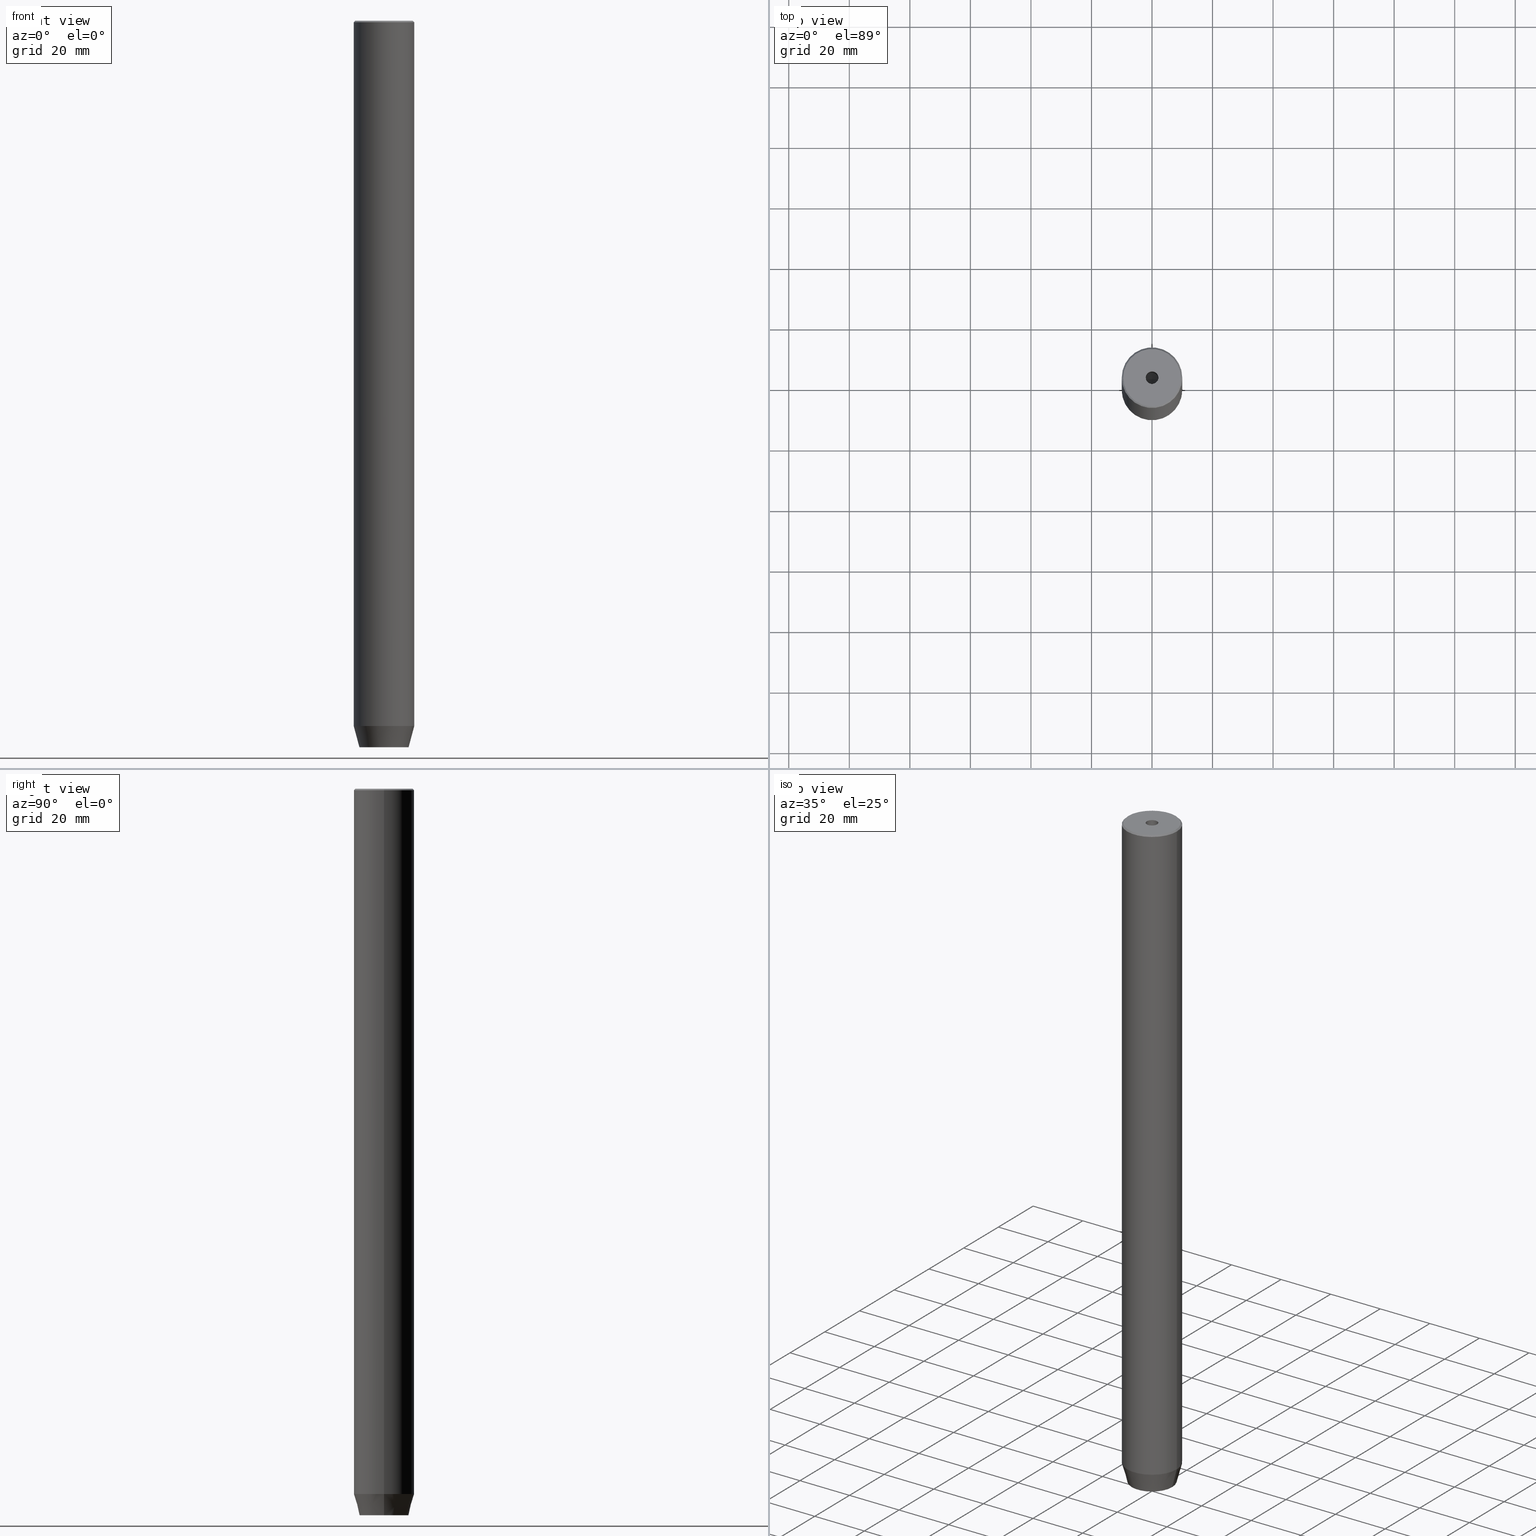
[diagram: canonical four-view strip — front | top / right | iso, engineering-drawing reading convention]
A machine part, canonical four-view strip (front | top / right | iso — engineering-drawing reading convention). The complete STEP part file that produces these views, byte-faithful:
ISO-10303-21;
HEADER;
FILE_DESCRIPTION (( 'STEP AP203' ),
    '1' );
FILE_NAME ('13ba.STEP',
    '2024-01-02T19:03:05',
    ( '' ),
    ( '' ),
    'SwSTEP 2.0',
    'SolidWorks 2019',
    '' );
FILE_SCHEMA (( 'CONFIG_CONTROL_DESIGN' ));
ENDSEC;

DATA;
#1 = EDGE_LOOP ( 'NONE', ( #378, #372, #456, #17 ) ) ;
#2 = CARTESIAN_POINT ( 'NONE',  ( -10.00000000000000000, 1.224646799147353256E-15, -232.9999999999999716 ) ) ;
#3 = CC_DESIGN_PERSON_AND_ORGANIZATION_ASSIGNMENT ( #78, #136, ( #303 ) ) ;
#4 = EDGE_LOOP ( 'NONE', ( #433, #330, #463 ) ) ;
#5 = DIRECTION ( 'NONE',  ( -0.000000000000000000, -0.000000000000000000, 1.000000000000000000 ) ) ;
#6 = DIRECTION ( 'NONE',  ( 0.5000000000000001110, 0.8660254037844385966, -0.000000000000000000 ) ) ;
#7 = CARTESIAN_POINT ( 'NONE',  ( 4.336808689942017736E-16, -4.618802153517006737, -237.1999999999999886 ) ) ;
#8 = EDGE_LOOP ( 'NONE', ( #275, #309 ) ) ;
#9 = LINE ( 'NONE', #373, #529 ) ;
#10 = LOCAL_TIME ( 20, 3, 5.000000000000000000, #58 ) ;
#11 = CARTESIAN_POINT ( 'NONE',  ( 2.000000000000000888, -3.464101615137754386, -237.1999999999999886 ) ) ;
#12 = VERTEX_POINT ( 'NONE', #393 ) ;
#13 = EDGE_CURVE ( 'NONE', #152, #273, #534, .T. ) ;
#14 = PERSON_AND_ORGANIZATION ( #92, #29 ) ;
#15 = CARTESIAN_POINT ( 'NONE',  ( 0.000000000000000000, 0.000000000000000000, -25.00000000000000000 ) ) ;
#16 = CYLINDRICAL_SURFACE ( 'NONE', #158, 10.00000000000000000 ) ;
#17 = ORIENTED_EDGE ( 'NONE', *, *, #101, .T. ) ;
#18 = CARTESIAN_POINT ( 'NONE',  ( -2.000000000000000888, -3.464101615137754386, -237.1999999999999886 ) ) ;
#19 = ORIENTED_EDGE ( 'NONE', *, *, #35, .F. ) ;
#20 = LINE ( 'NONE', #379, #511 ) ;
#21 = CALENDAR_DATE ( 2024, 2, 1 ) ;
#22 = VECTOR ( 'NONE', #238, 1000.000000000000000 ) ;
#23 = CARTESIAN_POINT ( 'NONE',  ( -2.000000000000000000, 3.464101615137754830, -237.1999999999999886 ) ) ;
#24 = EDGE_CURVE ( 'NONE', #410, #229, #467, .T. ) ;
#25 = DIRECTION ( 'NONE',  ( 0.5000000000000003331, -0.8660254037844385966, 0.000000000000000000 ) ) ;
#26 = ORIENTED_EDGE ( 'NONE', *, *, #317, .F. ) ;
#27 = CIRCLE ( 'NONE', #108, 10.00000000000000000 ) ;
#28 = CONICAL_SURFACE ( 'NONE', #360, 2.099999999999995648, 1.029744258676651647 ) ;
#29 = ORGANIZATION ( 'NEUR�EN�', 'NEUR�EN�', '' ) ;
#30 = DIRECTION ( 'NONE',  ( -1.000000000000000000, 0.000000000000000000, 0.000000000000000000 ) ) ;
#31 = ADVANCED_FACE ( 'NONE', ( #576 ), #405, .T. ) ;
#32 = DIRECTION ( 'NONE',  ( -1.000000000000000000, 0.000000000000000000, 0.000000000000000000 ) ) ;
#33 = CALENDAR_DATE ( 2024, 2, 1 ) ;
#34 = VERTEX_POINT ( 'NONE', #77 ) ;
#35 = EDGE_CURVE ( 'NONE', #545, #152, #351, .T. ) ;
#36 = CARTESIAN_POINT ( 'NONE',  ( 2.000000000000000444, 3.464101615137754386, -240.0000000000000000 ) ) ;
#37 = AXIS2_PLACEMENT_3D ( 'NONE', #271, #450, #333 ) ;
#38 = ORIENTED_EDGE ( 'NONE', *, *, #209, .F. ) ;
#39 = ORIENTED_EDGE ( 'NONE', *, *, #168, .F. ) ;
#40 = CARTESIAN_POINT ( 'NONE',  ( 9.499999999999980460, 1.163414459189983119E-15, 0.000000000000000000 ) ) ;
#41 = DIRECTION ( 'NONE',  ( 1.000000000000000000, 0.000000000000000000, 0.000000000000000000 ) ) ;
#42 = FACE_OUTER_BOUND ( 'NONE', #503, .T. ) ;
#43 = ORIENTED_EDGE ( 'NONE', *, *, #342, .T. ) ;
#44 = VECTOR ( 'NONE', #457, 1000.000000000000114 ) ;
#45 = CC_DESIGN_APPROVAL ( #161, ( #264 ) ) ;
#46 = CC_DESIGN_PERSON_AND_ORGANIZATION_ASSIGNMENT ( #293, #202, ( #264 ) ) ;
#47 = FACE_OUTER_BOUND ( 'NONE', #320, .T. ) ;
#48 = VERTEX_POINT ( 'NONE', #220 ) ;
#49 = DIRECTION ( 'NONE',  ( 1.000000000000000000, 0.000000000000000000, 0.000000000000000000 ) ) ;
#50 = ORIENTED_EDGE ( 'NONE', *, *, #510, .F. ) ;
#51 = CARTESIAN_POINT ( 'NONE',  ( 4.000000000000000000, 0.000000000000000000, -240.0000000000000000 ) ) ;
#52 = ADVANCED_FACE ( 'NONE', ( #173 ), #537, .T. ) ;
#53 = FACE_OUTER_BOUND ( 'NONE', #452, .T. ) ;
#54 = ADVANCED_FACE ( 'NONE', ( #441 ), #121, .T. ) ;
#55 = DIRECTION ( 'NONE',  ( -0.000000000000000000, -0.000000000000000000, 1.000000000000000000 ) ) ;
#56 = VECTOR ( 'NONE', #364, 1000.000000000000114 ) ;
#57 = DIRECTION ( 'NONE',  ( -0.000000000000000000, -0.000000000000000000, 1.000000000000000000 ) ) ;
#58 = COORDINATED_UNIVERSAL_TIME_OFFSET ( 1, 0, .AHEAD. ) ;
#59 = CARTESIAN_POINT ( 'NONE',  ( 2.099999999999998757, 0.000000000000000000, -1.990051048614449116E-16 ) ) ;
#60 = PERSON_AND_ORGANIZATION ( #92, #29 ) ;
#61 = VERTEX_POINT ( 'NONE', #266 ) ;
#62 = DIRECTION ( 'NONE',  ( 1.000000000000000000, 0.000000000000000000, 0.000000000000000000 ) ) ;
#63 = PERSON_AND_ORGANIZATION_ROLE ( 'design_owner' ) ;
#64 = PLANE ( 'NONE',  #493 ) ;
#65 = ORIENTED_EDGE ( 'NONE', *, *, #70, .F. ) ;
#66 = APPROVAL ( #356, 'NEUR�EN�' ) ;
#67 = VECTOR ( 'NONE', #294, 999.9999999999998863 ) ;
#68 = VERTEX_POINT ( 'NONE', #397 ) ;
#69 = DIRECTION ( 'NONE',  ( 0.000000000000000000, 0.000000000000000000, -1.000000000000000000 ) ) ;
#70 = EDGE_CURVE ( 'NONE', #61, #155, #265, .T. ) ;
#71 = DIRECTION ( 'NONE',  ( -0.000000000000000000, -0.000000000000000000, 1.000000000000000000 ) ) ;
#72 = AXIS2_PLACEMENT_3D ( 'NONE', #462, #415, #357 ) ;
#73 = VECTOR ( 'NONE', #175, 1000.000000000000000 ) ;
#74 = PRODUCT_DEFINITION_SHAPE ( 'NONE', 'NONE',  #264 ) ;
#75 = DIRECTION ( 'NONE',  ( -0.000000000000000000, -0.000000000000000000, 1.000000000000000000 ) ) ;
#76 = CALENDAR_DATE ( 2024, 2, 1 ) ;
#77 = CARTESIAN_POINT ( 'NONE',  ( -4.000000000000000000, 2.309401076758503368, -240.0000000000000000 ) ) ;
#78 = PERSON_AND_ORGANIZATION ( #92, #29 ) ;
#79 = EDGE_CURVE ( 'NONE', #85, #438, #130, .T. ) ;
#80 = ORIENTED_EDGE ( 'NONE', *, *, #501, .T. ) ;
#81 = AXIS2_PLACEMENT_3D ( 'NONE', #179, #539, #30 ) ;
#82 = AXIS2_PLACEMENT_3D ( 'NONE', #176, #71, #581 ) ;
#83 = DIRECTION ( 'NONE',  ( 1.000000000000000000, 0.000000000000000000, 0.000000000000000000 ) ) ;
#84 = AXIS2_PLACEMENT_3D ( 'NONE', #472, #477, #250 ) ;
#85 = VERTEX_POINT ( 'NONE', #447 ) ;
#86 = ORIENTED_EDGE ( 'NONE', *, *, #127, .T. ) ;
#87 = LINE ( 'NONE', #51, #236 ) ;
#88 = CARTESIAN_POINT ( 'NONE',  ( 0.000000000000000000, 0.000000000000000000, -237.1999999999999886 ) ) ;
#89 = EDGE_CURVE ( 'NONE', #432, #389, #327, .T. ) ;
#90 = ORIENTED_EDGE ( 'NONE', *, *, #127, .F. ) ;
#91 = LINE ( 'NONE', #193, #546 ) ;
#92 = PERSON ( 'NEUR�EN�', 'NEUR�EN�', 'NEUR�EN�', ('NEUR�EN�'), ('NEUR�EN�'), ('NEUR�EN�') ) ;
#93 = CARTESIAN_POINT ( 'NONE',  ( 4.000000000000000000, 2.309401076758503368, -237.1999999999999886 ) ) ;
#94 = CLOSED_SHELL ( 'NONE', ( #392, #483, #31, #224, #52, #374, #436, #230, #528, #54, #543, #406, #582, #538, #150, #243, #141, #363, #166 ) ) ;
#95 = ORIENTED_EDGE ( 'NONE', *, *, #203, .T. ) ;
#96 = VECTOR ( 'NONE', #409, 1000.000000000000114 ) ;
#97 = CARTESIAN_POINT ( 'NONE',  ( 9.499999999999980460, 1.194030629168668286E-15, 0.000000000000000000 ) ) ;
#98 = DIRECTION ( 'NONE',  ( -0.5000000000000003331, -0.8660254037844385966, 0.000000000000000000 ) ) ;
#99 = VERTEX_POINT ( 'NONE', #216 ) ;
#100 = CC_DESIGN_DATE_AND_TIME_ASSIGNMENT ( #174, #128, ( #264 ) ) ;
#101 = EDGE_CURVE ( 'NONE', #12, #196, #27, .T. ) ;
#102 = DIRECTION ( 'NONE',  ( -0.000000000000000000, -0.000000000000000000, 1.000000000000000000 ) ) ;
#103 = DIRECTION ( 'NONE',  ( -0.000000000000000000, -0.000000000000000000, 1.000000000000000000 ) ) ;
#104 = ORIENTED_EDGE ( 'NONE', *, *, #396, .T. ) ;
#105 = CARTESIAN_POINT ( 'NONE',  ( 0.000000000000000000, 0.000000000000000000, 0.000000000000000000 ) ) ;
#106 = LINE ( 'NONE', #344, #468 ) ;
#107 = ORIENTED_EDGE ( 'NONE', *, *, #565, .T. ) ;
#108 = AXIS2_PLACEMENT_3D ( 'NONE', #485, #69, #312 ) ;
#109 = AXIS2_PLACEMENT_3D ( 'NONE', #244, #335, #486 ) ;
#110 = LINE ( 'NONE', #23, #67 ) ;
#111 = DIRECTION ( 'NONE',  ( -0.000000000000000000, -0.000000000000000000, 1.000000000000000000 ) ) ;
#112 = DIRECTION ( 'NONE',  ( -0.000000000000000000, -0.000000000000000000, 1.000000000000000000 ) ) ;
#113 = DIRECTION ( 'NONE',  ( 1.000000000000000000, 0.000000000000000000, 0.000000000000000000 ) ) ;
#114 = APPROVAL_STATUS ( 'not_yet_approved' ) ;
#115 = ORIENTED_EDGE ( 'NONE', *, *, #414, .F. ) ;
#116 = DIRECTION ( 'NONE',  ( -0.000000000000000000, -0.000000000000000000, 1.000000000000000000 ) ) ;
#117 = ORIENTED_EDGE ( 'NONE', *, *, #101, .F. ) ;
#118 = DIRECTION ( 'NONE',  ( 1.000000000000000000, 0.000000000000000000, 0.000000000000000000 ) ) ;
#119 = DIRECTION ( 'NONE',  ( -0.000000000000000000, -0.000000000000000000, 1.000000000000000000 ) ) ;
#120 = CYLINDRICAL_SURFACE ( 'NONE', #431, 2.099999999999996980 ) ;
#121 = CONICAL_SURFACE ( 'NONE', #81, 9.499999999999980460, 0.7853981633974412846 ) ;
#122 = AXIS2_PLACEMENT_3D ( 'NONE', #520, #207, #198 ) ;
#123 = DIRECTION ( 'NONE',  ( 0.8660254037844384856, 0.5000000000000002220, 0.000000000000000000 ) ) ;
#124 = DIRECTION ( 'NONE',  ( 1.000000000000000000, 0.000000000000000000, 0.000000000000000000 ) ) ;
#125 = CARTESIAN_POINT ( 'NONE',  ( 0.000000000000000000, 0.000000000000000000, 0.000000000000000000 ) ) ;
#126 = DATE_AND_TIME ( #76, #482 ) ;
#127 = EDGE_CURVE ( 'NONE', #334, #61, #262, .T. ) ;
#128 = DATE_TIME_ROLE ( 'creation_date' ) ;
#129 = CARTESIAN_POINT ( 'NONE',  ( -9.499999999999980460, 0.000000000000000000, 0.000000000000000000 ) ) ;
#130 = LINE ( 'NONE', #36, #212 ) ;
#131 = PERSON_AND_ORGANIZATION ( #92, #29 ) ;
#132 = CARTESIAN_POINT ( 'NONE',  ( 10.00000000000000000, 0.000000000000000000, 0.000000000000000000 ) ) ;
#133 = CIRCLE ( 'NONE', #382, 10.00000000000000000 ) ;
#134 = CARTESIAN_POINT ( 'NONE',  ( 2.000000000000000444, 3.464101615137754386, -237.1999999999999886 ) ) ;
#135 = EDGE_CURVE ( 'NONE', #273, #460, #403, .T. ) ;
#136 = PERSON_AND_ORGANIZATION_ROLE ( 'design_supplier' ) ;
#137 = CARTESIAN_POINT ( 'NONE',  ( 4.000000000000000000, 0.000000000000000000, -237.1999999999999886 ) ) ;
#138 = CARTESIAN_POINT ( 'NONE',  ( 0.000000000000000000, 0.000000000000000000, 0.000000000000000000 ) ) ;
#139 = DIRECTION ( 'NONE',  ( 0.000000000000000000, 0.000000000000000000, -1.000000000000000000 ) ) ;
#140 = DIRECTION ( 'NONE',  ( 0.8571673007021108903, 0.000000000000000000, 0.5150380749100565980 ) ) ;
#141 = ADVANCED_FACE ( 'NONE', ( #47 ), #542, .T. ) ;
#142 = LINE ( 'NONE', #365, #178 ) ;
#143 = EDGE_LOOP ( 'NONE', ( #338, #426, #65, #90, #323, #301 ) ) ;
#144 = ORIENTED_EDGE ( 'NONE', *, *, #332, .T. ) ;
#145 = LINE ( 'NONE', #464, #22 ) ;
#146 = CYLINDRICAL_SURFACE ( 'NONE', #72, 2.099999999999996980 ) ;
#147 =( NAMED_UNIT ( * ) PLANE_ANGLE_UNIT ( ) SI_UNIT ( $, .RADIAN. ) );
#148 = ORIENTED_EDGE ( 'NONE', *, *, #580, .F. ) ;
#149 = CIRCLE ( 'NONE', #553, 9.499999999999980460 ) ;
#150 = ADVANCED_FACE ( 'NONE', ( #42 ), #400, .F. ) ;
#151 = LINE ( 'NONE', #451, #369 ) ;
#152 = VERTEX_POINT ( 'NONE', #93 ) ;
#153 = CARTESIAN_POINT ( 'NONE',  ( 0.000000000000000000, 4.618802153517006737, -237.1999999999999886 ) ) ;
#154 = DIRECTION ( 'NONE',  ( 1.000000000000000000, 0.000000000000000000, 0.000000000000000000 ) ) ;
#155 = VERTEX_POINT ( 'NONE', #278 ) ;
#156 = DIRECTION ( 'NONE',  ( -0.000000000000000000, -0.000000000000000000, 1.000000000000000000 ) ) ;
#157 = ORIENTED_EDGE ( 'NONE', *, *, #501, .F. ) ;
#158 = AXIS2_PLACEMENT_3D ( 'NONE', #201, #119, #296 ) ;
#159 = ORIENTED_EDGE ( 'NONE', *, *, #79, .T. ) ;
#160 = SECURITY_CLASSIFICATION ( '', '', #349 ) ;
#161 = APPROVAL ( #240, 'NEUR�EN�' ) ;
#162 = ORIENTED_EDGE ( 'NONE', *, *, #13, .T. ) ;
#163 = DATE_AND_TIME ( #21, #10 ) ;
#164 = ORIENTED_EDGE ( 'NONE', *, *, #332, .F. ) ;
#165 = CARTESIAN_POINT ( 'NONE',  ( -8.124355652982137244, 1.109796706851640556E-15, -240.0000000000000000 ) ) ;
#166 = ADVANCED_FACE ( 'NONE', ( #190 ), #146, .F. ) ;
#167 = APPROVAL_ROLE ( '' ) ;
#168 = EDGE_CURVE ( 'NONE', #549, #348, #149, .T. ) ;
#169 = VECTOR ( 'NONE', #57, 1000.000000000000000 ) ;
#170 = AXIS2_PLACEMENT_3D ( 'NONE', #469, #112, #154 ) ;
#171 = PLANE ( 'NONE',  #361 ) ;
#172 = DIRECTION ( 'NONE',  ( 1.000000000000000000, 0.000000000000000000, 0.000000000000000000 ) ) ;
#173 = FACE_OUTER_BOUND ( 'NONE', #223, .T. ) ;
#174 = DATE_AND_TIME ( #434, #494 ) ;
#175 = DIRECTION ( 'NONE',  ( -0.000000000000000000, -0.000000000000000000, -1.000000000000000000 ) ) ;
#176 = CARTESIAN_POINT ( 'NONE',  ( 0.000000000000000000, 0.000000000000000000, -1.990051048614449116E-16 ) ) ;
#177 = DATE_TIME_ROLE ( 'classification_date' ) ;
#178 = VECTOR ( 'NONE', #505, 999.9999999999998863 ) ;
#179 = CARTESIAN_POINT ( 'NONE',  ( 0.000000000000000000, 0.000000000000000000, 0.000000000000000000 ) ) ;
#180 = DIRECTION ( 'NONE',  ( 0.8660254037844384856, -0.5000000000000002220, 0.000000000000000000 ) ) ;
#181 = DIRECTION ( 'NONE',  ( -0.000000000000000000, 0.000000000000000000, -1.000000000000000000 ) ) ;
#182 = EDGE_LOOP ( 'NONE', ( #381, #550, #272, #283 ) ) ;
#183 = EDGE_CURVE ( 'NONE', #348, #549, #479, .T. ) ;
#184 = CONICAL_SURFACE ( 'NONE', #122, 2.099999999999995648, 1.029744258676651647 ) ;
#185 = PLANE ( 'NONE',  #442 ) ;
#186 = APPROVAL_PERSON_ORGANIZATION ( #131, #66, #167 ) ;
#187 = ORIENTED_EDGE ( 'NONE', *, *, #209, .T. ) ;
#188 = DIRECTION ( 'NONE',  ( -0.000000000000000000, -0.000000000000000000, -1.000000000000000000 ) ) ;
#189 = EDGE_CURVE ( 'NONE', #460, #61, #20, .T. ) ;
#190 = FACE_OUTER_BOUND ( 'NONE', #225, .T. ) ;
#191 = CARTESIAN_POINT ( 'NONE',  ( 8.124355652982137244, 0.000000000000000000, -240.0000000000000000 ) ) ;
#192 = ORIENTED_EDGE ( 'NONE', *, *, #299, .T. ) ;
#193 = CARTESIAN_POINT ( 'NONE',  ( -4.000000000000000000, 2.309401076758503368, -237.1999999999999886 ) ) ;
#194 = DIRECTION ( 'NONE',  ( -0.8660254037844385966, 0.5000000000000001110, 0.000000000000000000 ) ) ;
#195 = VECTOR ( 'NONE', #573, 1000.000000000000000 ) ;
#196 = VERTEX_POINT ( 'NONE', #563 ) ;
#197 = CIRCLE ( 'NONE', #421, 2.099999999999995648 ) ;
#198 = DIRECTION ( 'NONE',  ( 1.000000000000000000, 0.000000000000000000, 0.000000000000000000 ) ) ;
#199 = ORIENTED_EDGE ( 'NONE', *, *, #414, .T. ) ;
#200 = DIRECTION ( 'NONE',  ( -1.000000000000000000, 0.000000000000000000, 0.000000000000000000 ) ) ;
#201 = CARTESIAN_POINT ( 'NONE',  ( 0.000000000000000000, 0.000000000000000000, 0.000000000000000000 ) ) ;
#202 = PERSON_AND_ORGANIZATION_ROLE ( 'creator' ) ;
#203 = EDGE_CURVE ( 'NONE', #566, #68, #133, .T. ) ;
#204 = DIRECTION ( 'NONE',  ( -0.000000000000000000, -0.000000000000000000, -1.000000000000000000 ) ) ;
#205 = APPROVAL_DATE_TIME ( #163, #504 ) ;
#206 = AXIS2_PLACEMENT_3D ( 'NONE', #232, #5, #418 ) ;
#207 = DIRECTION ( 'NONE',  ( -0.000000000000000000, -0.000000000000000000, 1.000000000000000000 ) ) ;
#208 = VERTEX_POINT ( 'NONE', #295 ) ;
#209 = EDGE_CURVE ( 'NONE', #48, #410, #106, .T. ) ;
#210 = CARTESIAN_POINT ( 'NONE',  ( 10.00000000000000000, 0.000000000000000000, -232.9999999999999716 ) ) ;
#211 = DIRECTION ( 'NONE',  ( 0.8660254037844385966, -0.5000000000000001110, 0.000000000000000000 ) ) ;
#212 = VECTOR ( 'NONE', #495, 1000.000000000000000 ) ;
#213 = VECTOR ( 'NONE', #116, 1000.000000000000000 ) ;
#214 = DIRECTION ( 'NONE',  ( -0.8660254037844384856, 0.5000000000000002220, 0.000000000000000000 ) ) ;
#215 = CARTESIAN_POINT ( 'NONE',  ( -6.432287649943602629E-15, 0.000000000000000000, -26.26180729995787999 ) ) ;
#216 = CARTESIAN_POINT ( 'NONE',  ( -4.000000000000000000, -2.309401076758503368, -237.1999999999999886 ) ) ;
#217 = DATE_AND_TIME ( #33, #222 ) ;
#218 = DIRECTION ( 'NONE',  ( -0.5000000000000000000, 0.8660254037844387076, 0.000000000000000000 ) ) ;
#219 = CC_DESIGN_DATE_AND_TIME_ASSIGNMENT ( #217, #177, ( #160 ) ) ;
#220 = CARTESIAN_POINT ( 'NONE',  ( 2.099999999999995648, 0.000000000000000000, -25.00000000000000000 ) ) ;
#221 = AXIS2_PLACEMENT_3D ( 'NONE', #408, #583, #181 ) ;
#222 = LOCAL_TIME ( 20, 3, 5.000000000000000000, #263 ) ;
#223 = EDGE_LOOP ( 'NONE', ( #95, #234, #104, #148 ) ) ;
#224 = ADVANCED_FACE ( 'NONE', ( #475 ), #249, .T. ) ;
#225 = EDGE_LOOP ( 'NONE', ( #157, #50, #187, #226 ) ) ;
#226 = ORIENTED_EDGE ( 'NONE', *, *, #24, .T. ) ;
#227 = VECTOR ( 'NONE', #507, 999.9999999999998863 ) ;
#228 = APPROVAL_PERSON_ORGANIZATION ( #521, #504, #429 ) ;
#229 = VERTEX_POINT ( 'NONE', #289 ) ;
#230 = ADVANCED_FACE ( 'NONE', ( #425 ), #16, .T. ) ;
#231 = ORIENTED_EDGE ( 'NONE', *, *, #251, .T. ) ;
#232 = CARTESIAN_POINT ( 'NONE',  ( 0.000000000000000000, 0.000000000000000000, -25.00000000000000000 ) ) ;
#233 = LINE ( 'NONE', #416, #449 ) ;
#234 = ORIENTED_EDGE ( 'NONE', *, *, #371, .T. ) ;
#235 = CARTESIAN_POINT ( 'NONE',  ( 2.099999999999995648, 0.000000000000000000, -25.00000000000000000 ) ) ;
#236 = VECTOR ( 'NONE', #423, 1000.000000000000000 ) ;
#237 = CC_DESIGN_APPROVAL ( #66, ( #303 ) ) ;
#238 = DIRECTION ( 'NONE',  ( -0.000000000000000000, -0.000000000000000000, -1.000000000000000000 ) ) ;
#239 = APPROVAL_DATE_TIME ( #564, #161 ) ;
#240 = APPROVAL_STATUS ( 'not_yet_approved' ) ;
#241 = APPLICATION_PROTOCOL_DEFINITION ( 'international standard', 'config_control_design', 1994, #440 ) ;
#242 = ORIENTED_EDGE ( 'NONE', *, *, #350, .F. ) ;
#243 = ADVANCED_FACE ( 'NONE', ( #252 ), #64, .F. ) ;
#244 = CARTESIAN_POINT ( 'NONE',  ( 0.000000000000000000, 0.000000000000000000, -0.5000000000000264233 ) ) ;
#245 = APPLICATION_PROTOCOL_DEFINITION ( 'international standard', 'config_control_design', 1994, #533 ) ;
#246 = CARTESIAN_POINT ( 'NONE',  ( 2.000000000000000444, 3.464101615137754386, -237.1999999999999886 ) ) ;
#247 = EDGE_LOOP ( 'NONE', ( #430, #39, #368, #117 ) ) ;
#248 = DIRECTION ( 'NONE',  ( 0.000000000000000000, 0.000000000000000000, -1.000000000000000000 ) ) ;
#249 = CONICAL_SURFACE ( 'NONE', #276, 10.00000000000000000, 0.2617993877991497964 ) ;
#250 = DIRECTION ( 'NONE',  ( 1.000000000000000000, 0.000000000000000000, 0.000000000000000000 ) ) ;
#251 = EDGE_CURVE ( 'NONE', #348, #12, #370, .T. ) ;
#252 = FACE_OUTER_BOUND ( 'NONE', #366, .T. ) ;
#253 = COORDINATED_UNIVERSAL_TIME_OFFSET ( 1, 0, .AHEAD. ) ;
#254 = EDGE_LOOP ( 'NONE', ( #585, #422, #115, #569 ) ) ;
#255 = CARTESIAN_POINT ( 'NONE',  ( -2.000000000000000000, 3.464101615137754830, -237.1999999999999886 ) ) ;
#256 = DIRECTION ( 'NONE',  ( -0.8660254037844384856, -0.5000000000000002220, 0.000000000000000000 ) ) ;
#257 = PLANE ( 'NONE',  #398 ) ;
#258 = ORIENTED_EDGE ( 'NONE', *, *, #288, .T. ) ;
#259 = CIRCLE ( 'NONE', #109, 10.00000000000000000 ) ;
#260 = CC_DESIGN_APPROVAL ( #504, ( #160 ) ) ;
#261 = PRODUCT ( '13ba', '13ba', '', ( #277 ) ) ;
#262 = LINE ( 'NONE', #579, #562 ) ;
#263 = COORDINATED_UNIVERSAL_TIME_OFFSET ( 1, 0, .AHEAD. ) ;
#264 = PRODUCT_DEFINITION ( 'NEZN�M�', '', #303, #345 ) ;
#265 = LINE ( 'NONE', #448, #336 ) ;
#266 = CARTESIAN_POINT ( 'NONE',  ( 4.336808689942017736E-16, -4.618802153517006737, -240.0000000000000000 ) ) ;
#267 = EDGE_CURVE ( 'NONE', #155, #34, #411, .T. ) ;
#268 = CIRCLE ( 'NONE', #586, 8.124355652982137244 ) ;
#269 = EDGE_CURVE ( 'NONE', #208, #34, #91, .T. ) ;
#270 = VECTOR ( 'NONE', #488, 1000.000000000000000 ) ;
#271 = CARTESIAN_POINT ( 'NONE',  ( 0.000000000000000000, 0.000000000000000000, 0.000000000000000000 ) ) ;
#272 = ORIENTED_EDGE ( 'NONE', *, *, #461, .F. ) ;
#273 = VERTEX_POINT ( 'NONE', #359 ) ;
#274 = DIRECTION ( 'NONE',  ( 1.000000000000000000, 0.000000000000000000, 0.000000000000000000 ) ) ;
#275 = ORIENTED_EDGE ( 'NONE', *, *, #24, .F. ) ;
#276 = AXIS2_PLACEMENT_3D ( 'NONE', #478, #111, #113 ) ;
#277 = MECHANICAL_CONTEXT ( 'NONE', #440, 'mechanical' ) ;
#278 = CARTESIAN_POINT ( 'NONE',  ( -4.000000000000000000, -2.309401076758503368, -240.0000000000000000 ) ) ;
#279 =( LENGTH_UNIT ( ) NAMED_UNIT ( * ) SI_UNIT ( .MILLI., .METRE. ) );
#280 = ORIENTED_EDGE ( 'NONE', *, *, #396, .F. ) ;
#281 =( NAMED_UNIT ( * ) SI_UNIT ( $, .STERADIAN. ) SOLID_ANGLE_UNIT ( ) );
#282 = DIRECTION ( 'NONE',  ( 0.000000000000000000, -0.000000000000000000, 1.000000000000000000 ) ) ;
#283 = ORIENTED_EDGE ( 'NONE', *, *, #355, .T. ) ;
#284 = DIRECTION ( 'NONE',  ( -0.000000000000000000, -0.000000000000000000, -1.000000000000000000 ) ) ;
#285 = DIRECTION ( 'NONE',  ( 0.000000000000000000, 1.000000000000000000, 0.000000000000000000 ) ) ;
#286 = MANIFOLD_SOLID_BREP ( 'Vrt�k z�vitn�ku pro M5 z�vit1', #94 ) ;
#287 = AXIS2_PLACEMENT_3D ( 'NONE', #530, #75, #124 ) ;
#288 = EDGE_CURVE ( 'NONE', #389, #68, #321, .T. ) ;
#289 = CARTESIAN_POINT ( 'NONE',  ( -2.099999999999998757, 2.571758278209440478E-16, -1.990051048614449116E-16 ) ) ;
#290 = VECTOR ( 'NONE', #140, 1000.000000000000114 ) ;
#291 = ORIENTED_EDGE ( 'NONE', *, *, #89, .T. ) ;
#292 = DIRECTION ( 'NONE',  ( -1.000000000000000000, 0.000000000000000000, -0.000000000000000000 ) ) ;
#293 = PERSON_AND_ORGANIZATION ( #92, #29 ) ;
#294 = DIRECTION ( 'NONE',  ( 0.8660254037844387076, 0.5000000000000001110, 0.000000000000000000 ) ) ;
#295 = CARTESIAN_POINT ( 'NONE',  ( -4.000000000000000000, 2.309401076758503368, -237.1999999999999886 ) ) ;
#296 = DIRECTION ( 'NONE',  ( 1.000000000000000000, 0.000000000000000000, 0.000000000000000000 ) ) ;
#297 = PLANE ( 'NONE',  #353 ) ;
#298 = ORIENTED_EDGE ( 'NONE', *, *, #288, .F. ) ;
#299 = EDGE_CURVE ( 'NONE', #552, #555, #367, .T. ) ;
#300 = FACE_OUTER_BOUND ( 'NONE', #522, .T. ) ;
#301 = ORIENTED_EDGE ( 'NONE', *, *, #79, .F. ) ;
#302 = VECTOR ( 'NONE', #285, 1000.000000000000000 ) ;
#303 = PRODUCT_DEFINITION_FORMATION_WITH_SPECIFIED_SOURCE ( 'LIBOVOLN�', '', #261, .NOT_KNOWN. ) ;
#304 = PRODUCT_RELATED_PRODUCT_CATEGORY ( 'detail', '', ( #261 ) ) ;
#305 = PLANE ( 'NONE',  #337 ) ;
#306 = EDGE_LOOP ( 'NONE', ( #291, #258, #343, #362 ) ) ;
#307 = DIRECTION ( 'NONE',  ( -0.000000000000000000, -0.000000000000000000, 1.000000000000000000 ) ) ;
#308 = CARTESIAN_POINT ( 'NONE',  ( -2.000000000000000888, -3.464101615137754386, -237.1999999999999886 ) ) ;
#309 = ORIENTED_EDGE ( 'NONE', *, *, #473, .F. ) ;
#310 = PERSON_AND_ORGANIZATION ( #92, #29 ) ;
#311 = EDGE_CURVE ( 'NONE', #552, #48, #513, .T. ) ;
#312 = DIRECTION ( 'NONE',  ( 1.000000000000000000, 0.000000000000000000, 0.000000000000000000 ) ) ;
#313 = CARTESIAN_POINT ( 'NONE',  ( 0.000000000000000000, 0.000000000000000000, 0.000000000000000000 ) ) ;
#314 = CC_DESIGN_PERSON_AND_ORGANIZATION_ASSIGNMENT ( #391, #496, ( #303 ) ) ;
#315 = COORDINATED_UNIVERSAL_TIME_OFFSET ( 1, 0, .AHEAD. ) ;
#316 = CARTESIAN_POINT ( 'NONE',  ( 0.000000000000000000, 0.000000000000000000, 0.000000000000000000 ) ) ;
#317 = EDGE_CURVE ( 'NONE', #545, #85, #509, .T. ) ;
#318 = DIRECTION ( 'NONE',  ( -0.000000000000000000, -0.000000000000000000, 1.000000000000000000 ) ) ;
#319 = CIRCLE ( 'NONE', #587, 10.00000000000000000 ) ;
#320 = EDGE_LOOP ( 'NONE', ( #556, #386, #162, #492, #199, #476 ) ) ;
#321 = LINE ( 'NONE', #2, #44 ) ;
#322 = FACE_BOUND ( 'NONE', #8, .T. ) ;
#323 = ORIENTED_EDGE ( 'NONE', *, *, #342, .F. ) ;
#324 = CARTESIAN_POINT ( 'NONE',  ( -4.000000000000000000, 0.000000000000000000, -240.0000000000000000 ) ) ;
#325 = ORIENTED_EDGE ( 'NONE', *, *, #183, .T. ) ;
#326 = CARTESIAN_POINT ( 'NONE',  ( 4.000000000000000000, -2.309401076758502480, -240.0000000000000000 ) ) ;
#327 = CIRCLE ( 'NONE', #287, 8.124355652982137244 ) ;
#328 = ORIENTED_EDGE ( 'NONE', *, *, #13, .F. ) ;
#329 = DIRECTION ( 'NONE',  ( -0.8571673007021108903, 1.049727191138616847E-16, 0.5150380749100565980 ) ) ;
#330 = ORIENTED_EDGE ( 'NONE', *, *, #311, .T. ) ;
#331 = DIRECTION ( 'NONE',  ( -0.000000000000000000, -0.000000000000000000, -1.000000000000000000 ) ) ;
#332 = EDGE_CURVE ( 'NONE', #273, #334, #145, .T. ) ;
#333 = DIRECTION ( 'NONE',  ( 1.000000000000000000, 0.000000000000000000, 0.000000000000000000 ) ) ;
#334 = VERTEX_POINT ( 'NONE', #326 ) ;
#335 = DIRECTION ( 'NONE',  ( 0.000000000000000000, 0.000000000000000000, -1.000000000000000000 ) ) ;
#336 = VECTOR ( 'NONE', #214, 1000.000000000000114 ) ;
#337 = AXIS2_PLACEMENT_3D ( 'NONE', #255, #218, #575 ) ;
#338 = ORIENTED_EDGE ( 'NONE', *, *, #437, .F. ) ;
#339 = VECTOR ( 'NONE', #388, 1000.000000000000114 ) ;
#340 = EDGE_LOOP ( 'NONE', ( #358, #455 ) ) ;
#341 = ADVANCED_BREP_SHAPE_REPRESENTATION ( '13ba', ( #286, #500 ), #516 ) ;
#342 = EDGE_CURVE ( 'NONE', #438, #334, #87, .T. ) ;
#343 = ORIENTED_EDGE ( 'NONE', *, *, #203, .F. ) ;
#344 = CARTESIAN_POINT ( 'NONE',  ( 2.099999999999996980, 0.000000000000000000, 0.000000000000000000 ) ) ;
#345 = DESIGN_CONTEXT ( 'detailed design', #533, 'design' ) ;
#346 = CONICAL_SURFACE ( 'NONE', #84, 10.00000000000000000, 0.2617993877991497964 ) ;
#347 = FACE_OUTER_BOUND ( 'NONE', #489, .T. ) ;
#348 = VERTEX_POINT ( 'NONE', #97 ) ;
#349 = SECURITY_CLASSIFICATION_LEVEL ( 'unclassified' ) ;
#350 = EDGE_CURVE ( 'NONE', #555, #48, #498, .T. ) ;
#351 = LINE ( 'NONE', #134, #419 ) ;
#352 = DIRECTION ( 'NONE',  ( 0.000000000000000000, 0.000000000000000000, -1.000000000000000000 ) ) ;
#353 = AXIS2_PLACEMENT_3D ( 'NONE', #527, #248, #292 ) ;
#354 = EDGE_LOOP ( 'NONE', ( #399, #325 ) ) ;
#355 = EDGE_CURVE ( 'NONE', #99, #155, #9, .T. ) ;
#356 = APPROVAL_STATUS ( 'not_yet_approved' ) ;
#357 = DIRECTION ( 'NONE',  ( 1.000000000000000000, 0.000000000000000000, 0.000000000000000000 ) ) ;
#358 = ORIENTED_EDGE ( 'NONE', *, *, #89, .F. ) ;
#359 = CARTESIAN_POINT ( 'NONE',  ( 4.000000000000000000, -2.309401076758502480, -237.1999999999999886 ) ) ;
#360 = AXIS2_PLACEMENT_3D ( 'NONE', #466, #55, #274 ) ;
#361 = AXIS2_PLACEMENT_3D ( 'NONE', #308, #98, #180 ) ;
#362 = ORIENTED_EDGE ( 'NONE', *, *, #565, .F. ) ;
#363 = ADVANCED_FACE ( 'NONE', ( #515 ), #28, .F. ) ;
#364 = DIRECTION ( 'NONE',  ( -0.8660254037844384856, -0.5000000000000002220, 0.000000000000000000 ) ) ;
#365 = CARTESIAN_POINT ( 'NONE',  ( -9.499999999999980460, 0.000000000000000000, 0.000000000000000000 ) ) ;
#366 = EDGE_LOOP ( 'NONE', ( #159, #584, #19, #481 ) ) ;
#367 = LINE ( 'NONE', #551, #459 ) ;
#368 = ORIENTED_EDGE ( 'NONE', *, *, #454, .T. ) ;
#369 = VECTOR ( 'NONE', #401, 1000.000000000000000 ) ;
#370 = LINE ( 'NONE', #40, #227 ) ;
#371 = EDGE_CURVE ( 'NONE', #68, #196, #380, .T. ) ;
#372 = ORIENTED_EDGE ( 'NONE', *, *, #544, .T. ) ;
#373 = CARTESIAN_POINT ( 'NONE',  ( -4.000000000000000000, -2.309401076758503368, -237.1999999999999886 ) ) ;
#374 = ADVANCED_FACE ( 'NONE', ( #384, #567 ), #297, .T. ) ;
#375 = EDGE_LOOP ( 'NONE', ( #242, #80, #402, #38 ) ) ;
#376 = DIRECTION ( 'NONE',  ( 0.000000000000000000, 0.000000000000000000, 1.000000000000000000 ) ) ;
#377 = CC_DESIGN_PERSON_AND_ORGANIZATION_ASSIGNMENT ( #310, #490, ( #160 ) ) ;
#378 = ORIENTED_EDGE ( 'NONE', *, *, #371, .F. ) ;
#379 = CARTESIAN_POINT ( 'NONE',  ( 4.336808689942017736E-16, -4.618802153517006737, -237.1999999999999886 ) ) ;
#380 = LINE ( 'NONE', #570, #213 ) ;
#381 = ORIENTED_EDGE ( 'NONE', *, *, #267, .T. ) ;
#382 = AXIS2_PLACEMENT_3D ( 'NONE', #558, #103, #525 ) ;
#383 = CC_DESIGN_SECURITY_CLASSIFICATION ( #160, ( #303 ) ) ;
#384 = FACE_BOUND ( 'NONE', #143, .T. ) ;
#385 = DIRECTION ( 'NONE',  ( -0.000000000000000000, -0.000000000000000000, 1.000000000000000000 ) ) ;
#386 = ORIENTED_EDGE ( 'NONE', *, *, #35, .T. ) ;
#387 = ORIENTED_EDGE ( 'NONE', *, *, #437, .T. ) ;
#388 = DIRECTION ( 'NONE',  ( 0.2588190451025210725, 0.000000000000000000, 0.9659258262890680902 ) ) ;
#389 = VERTEX_POINT ( 'NONE', #165 ) ;
#390 = VECTOR ( 'NONE', #284, 1000.000000000000000 ) ;
#391 = PERSON_AND_ORGANIZATION ( #92, #29 ) ;
#392 = ADVANCED_FACE ( 'NONE', ( #531 ), #120, .F. ) ;
#393 = CARTESIAN_POINT ( 'NONE',  ( 10.00000000000000000, 0.000000000000000000, -0.5000000000000264233 ) ) ;
#394 = LINE ( 'NONE', #577, #73 ) ;
#395 = DIRECTION ( 'NONE',  ( -0.000000000000000000, -0.000000000000000000, 1.000000000000000000 ) ) ;
#396 = EDGE_CURVE ( 'NONE', #196, #12, #259, .T. ) ;
#397 = CARTESIAN_POINT ( 'NONE',  ( -10.00000000000000000, 1.224646799147353256E-15, -232.9999999999999716 ) ) ;
#398 = AXIS2_PLACEMENT_3D ( 'NONE', #439, #200, #376 ) ;
#399 = ORIENTED_EDGE ( 'NONE', *, *, #168, .T. ) ;
#400 = PLANE ( 'NONE',  #221 ) ;
#401 = DIRECTION ( 'NONE',  ( 0.000000000000000000, 1.000000000000000000, 0.000000000000000000 ) ) ;
#402 = ORIENTED_EDGE ( 'NONE', *, *, #473, .T. ) ;
#403 = LINE ( 'NONE', #547, #56 ) ;
#404 = ORIENTED_EDGE ( 'NONE', *, *, #517, .T. ) ;
#405 = CONICAL_SURFACE ( 'NONE', #561, 9.499999999999980460, 0.7853981633974412846 ) ;
#406 = ADVANCED_FACE ( 'NONE', ( #471 ), #257, .F. ) ;
#407 = AXIS2_PLACEMENT_3D ( 'NONE', #88, #139, #502 ) ;
#408 = CARTESIAN_POINT ( 'NONE',  ( 4.000000000000000000, 0.000000000000000000, -237.1999999999999886 ) ) ;
#409 = DIRECTION ( 'NONE',  ( -0.8660254037844384856, 0.5000000000000002220, 0.000000000000000000 ) ) ;
#410 = VERTEX_POINT ( 'NONE', #59 ) ;
#411 = LINE ( 'NONE', #324, #302 ) ;
#412 = CARTESIAN_POINT ( 'NONE',  ( 0.000000000000000000, 0.000000000000000000, 0.000000000000000000 ) ) ;
#413 = ORIENTED_EDGE ( 'NONE', *, *, #544, .F. ) ;
#414 = EDGE_CURVE ( 'NONE', #460, #99, #427, .T. ) ;
#415 = DIRECTION ( 'NONE',  ( -0.000000000000000000, -0.000000000000000000, 1.000000000000000000 ) ) ;
#416 = CARTESIAN_POINT ( 'NONE',  ( -2.000000000000000000, 3.464101615137754830, -240.0000000000000000 ) ) ;
#417 = ORIENTED_EDGE ( 'NONE', *, *, #484, .F. ) ;
#418 = DIRECTION ( 'NONE',  ( 1.000000000000000000, 0.000000000000000000, 0.000000000000000000 ) ) ;
#419 = VECTOR ( 'NONE', #211, 1000.000000000000000 ) ;
#420 = PLANE ( 'NONE',  #499 ) ;
#421 = AXIS2_PLACEMENT_3D ( 'NONE', #15, #385, #118 ) ;
#422 = ORIENTED_EDGE ( 'NONE', *, *, #355, .F. ) ;
#423 = DIRECTION ( 'NONE',  ( 0.000000000000000000, -1.000000000000000000, 0.000000000000000000 ) ) ;
#424 = CARTESIAN_POINT ( 'NONE',  ( -2.099999999999996980, 2.571758278209438013E-16, 0.000000000000000000 ) ) ;
#425 = FACE_OUTER_BOUND ( 'NONE', #1, .T. ) ;
#426 = ORIENTED_EDGE ( 'NONE', *, *, #267, .F. ) ;
#427 = LINE ( 'NONE', #18, #96 ) ;
#428 = COORDINATED_UNIVERSAL_TIME_OFFSET ( 1, 0, .AHEAD. ) ;
#429 = APPROVAL_ROLE ( '' ) ;
#430 = ORIENTED_EDGE ( 'NONE', *, *, #251, .F. ) ;
#431 = AXIS2_PLACEMENT_3D ( 'NONE', #125, #307, #62 ) ;
#432 = VERTEX_POINT ( 'NONE', #191 ) ;
#433 = ORIENTED_EDGE ( 'NONE', *, *, #299, .F. ) ;
#434 = CALENDAR_DATE ( 2024, 2, 1 ) ;
#435 = CARTESIAN_POINT ( 'NONE',  ( 0.000000000000000000, 4.618802153517006737, -237.1999999999999886 ) ) ;
#436 = ADVANCED_FACE ( 'NONE', ( #322, #453 ), #185, .T. ) ;
#437 = EDGE_CURVE ( 'NONE', #34, #85, #233, .T. ) ;
#438 = VERTEX_POINT ( 'NONE', #548 ) ;
#439 = CARTESIAN_POINT ( 'NONE',  ( -4.000000000000000000, 0.000000000000000000, -237.1999999999999886 ) ) ;
#440 = APPLICATION_CONTEXT ( 'configuration controlled 3d designs of mechanical parts and assemblies' ) ;
#441 = FACE_OUTER_BOUND ( 'NONE', #247, .T. ) ;
#442 = AXIS2_PLACEMENT_3D ( 'NONE', #412, #282, #49 ) ;
#443 = APPROVAL_PERSON_ORGANIZATION ( #60, #161, #523 ) ;
#444 = CARTESIAN_POINT ( 'NONE',  ( 10.00000000000000000, 0.000000000000000000, -232.9999999999999716 ) ) ;
#445 = ORIENTED_EDGE ( 'NONE', *, *, #135, .F. ) ;
#446 = LINE ( 'NONE', #132, #270 ) ;
#447 = CARTESIAN_POINT ( 'NONE',  ( 2.168404344971008868E-16, 4.618802153517006737, -240.0000000000000000 ) ) ;
#448 = CARTESIAN_POINT ( 'NONE',  ( -2.000000000000000888, -3.464101615137754386, -240.0000000000000000 ) ) ;
#449 = VECTOR ( 'NONE', #554, 999.9999999999998863 ) ;
#450 = DIRECTION ( 'NONE',  ( -0.000000000000000000, -0.000000000000000000, 1.000000000000000000 ) ) ;
#451 = CARTESIAN_POINT ( 'NONE',  ( -4.000000000000000000, 0.000000000000000000, -237.1999999999999886 ) ) ;
#452 = EDGE_LOOP ( 'NONE', ( #86, #559, #445, #144 ) ) ;
#453 = FACE_OUTER_BOUND ( 'NONE', #354, .T. ) ;
#454 = EDGE_CURVE ( 'NONE', #549, #196, #142, .T. ) ;
#455 = ORIENTED_EDGE ( 'NONE', *, *, #517, .F. ) ;
#456 = ORIENTED_EDGE ( 'NONE', *, *, #580, .T. ) ;
#457 = DIRECTION ( 'NONE',  ( -0.2588190451025210725, 3.169619151431769255E-17, 0.9659258262890680902 ) ) ;
#458 = AXIS2_PLACEMENT_3D ( 'NONE', #313, #395, #172 ) ;
#459 = VECTOR ( 'NONE', #329, 1000.000000000000114 ) ;
#460 = VERTEX_POINT ( 'NONE', #7 ) ;
#461 = EDGE_CURVE ( 'NONE', #99, #208, #151, .T. ) ;
#462 = CARTESIAN_POINT ( 'NONE',  ( 0.000000000000000000, 0.000000000000000000, 0.000000000000000000 ) ) ;
#463 = ORIENTED_EDGE ( 'NONE', *, *, #510, .T. ) ;
#464 = CARTESIAN_POINT ( 'NONE',  ( 4.000000000000000000, -2.309401076758502480, -237.1999999999999886 ) ) ;
#465 = DIRECTION ( 'NONE',  ( 1.000000000000000000, 0.000000000000000000, 0.000000000000000000 ) ) ;
#466 = CARTESIAN_POINT ( 'NONE',  ( 0.000000000000000000, 0.000000000000000000, -25.00000000000000000 ) ) ;
#467 = CIRCLE ( 'NONE', #82, 2.099999999999998757 ) ;
#468 = VECTOR ( 'NONE', #156, 1000.000000000000000 ) ;
#469 = CARTESIAN_POINT ( 'NONE',  ( 0.000000000000000000, 0.000000000000000000, -1.990051048614449116E-16 ) ) ;
#470 = DIRECTION ( 'NONE',  ( 0.000000000000000000, 0.000000000000000000, 1.000000000000000000 ) ) ;
#471 = FACE_OUTER_BOUND ( 'NONE', #182, .T. ) ;
#472 = CARTESIAN_POINT ( 'NONE',  ( 0.000000000000000000, 0.000000000000000000, -232.9999999999999716 ) ) ;
#473 = EDGE_CURVE ( 'NONE', #229, #410, #572, .T. ) ;
#474 = FACE_OUTER_BOUND ( 'NONE', #512, .T. ) ;
#475 = FACE_OUTER_BOUND ( 'NONE', #306, .T. ) ;
#476 = ORIENTED_EDGE ( 'NONE', *, *, #461, .T. ) ;
#477 = DIRECTION ( 'NONE',  ( -0.000000000000000000, -0.000000000000000000, 1.000000000000000000 ) ) ;
#478 = CARTESIAN_POINT ( 'NONE',  ( 0.000000000000000000, 0.000000000000000000, -232.9999999999999716 ) ) ;
#479 = CIRCLE ( 'NONE', #37, 9.499999999999980460 ) ;
#480 = SHAPE_DEFINITION_REPRESENTATION ( #74, #341 ) ;
#481 = ORIENTED_EDGE ( 'NONE', *, *, #317, .T. ) ;
#482 = LOCAL_TIME ( 20, 3, 5.000000000000000000, #315 ) ;
#483 = ADVANCED_FACE ( 'NONE', ( #474 ), #184, .F. ) ;
#484 = EDGE_CURVE ( 'NONE', #208, #545, #110, .T. ) ;
#485 = CARTESIAN_POINT ( 'NONE',  ( 0.000000000000000000, 0.000000000000000000, -0.5000000000000264233 ) ) ;
#486 = DIRECTION ( 'NONE',  ( 1.000000000000000000, 0.000000000000000000, 0.000000000000000000 ) ) ;
#487 = APPROVAL_DATE_TIME ( #126, #66 ) ;
#488 = DIRECTION ( 'NONE',  ( -0.000000000000000000, -0.000000000000000000, 1.000000000000000000 ) ) ;
#489 = EDGE_LOOP ( 'NONE', ( #387, #26, #417, #518 ) ) ;
#490 = PERSON_AND_ORGANIZATION_ROLE ( 'classification_officer' ) ;
#491 = LINE ( 'NONE', #210, #339 ) ;
#492 = ORIENTED_EDGE ( 'NONE', *, *, #135, .T. ) ;
#493 = AXIS2_PLACEMENT_3D ( 'NONE', #246, #6, #194 ) ;
#494 = LOCAL_TIME ( 20, 3, 5.000000000000000000, #253 ) ;
#495 = DIRECTION ( 'NONE',  ( 0.8660254037844385966, -0.5000000000000001110, 0.000000000000000000 ) ) ;
#496 = PERSON_AND_ORGANIZATION_ROLE ( 'creator' ) ;
#497 = DIRECTION ( 'NONE',  ( 1.000000000000000000, 0.000000000000000000, 0.000000000000000000 ) ) ;
#498 = CIRCLE ( 'NONE', #206, 2.099999999999995648 ) ;
#499 = AXIS2_PLACEMENT_3D ( 'NONE', #11, #25, #123 ) ;
#500 = AXIS2_PLACEMENT_3D ( 'NONE', #105, #470, #41 ) ;
#501 = EDGE_CURVE ( 'NONE', #555, #229, #514, .T. ) ;
#502 = DIRECTION ( 'NONE',  ( -1.000000000000000000, 0.000000000000000000, -0.000000000000000000 ) ) ;
#503 = EDGE_LOOP ( 'NONE', ( #43, #164, #328, #506 ) ) ;
#504 = APPROVAL ( #114, 'NEUR�EN�' ) ;
#505 = DIRECTION ( 'NONE',  ( -0.7071067811865425767, 0.000000000000000000, -0.7071067811865525687 ) ) ;
#506 = ORIENTED_EDGE ( 'NONE', *, *, #578, .T. ) ;
#507 = DIRECTION ( 'NONE',  ( 0.7071067811865425767, 8.659560562354873694E-17, -0.7071067811865525687 ) ) ;
#508 = ORIENTED_EDGE ( 'NONE', *, *, #311, .F. ) ;
#509 = LINE ( 'NONE', #153, #390 ) ;
#510 = EDGE_CURVE ( 'NONE', #48, #555, #197, .T. ) ;
#511 = VECTOR ( 'NONE', #204, 1000.000000000000000 ) ;
#512 = EDGE_LOOP ( 'NONE', ( #508, #192, #526 ) ) ;
#513 = LINE ( 'NONE', #235, #290 ) ;
#514 = LINE ( 'NONE', #424, #169 ) ;
#515 = FACE_OUTER_BOUND ( 'NONE', #4, .T. ) ;
#516 =( GEOMETRIC_REPRESENTATION_CONTEXT ( 3 ) GLOBAL_UNCERTAINTY_ASSIGNED_CONTEXT ( ( #535 ) ) GLOBAL_UNIT_ASSIGNED_CONTEXT ( ( #279, #147, #281 ) ) REPRESENTATION_CONTEXT ( 'NONE', 'WORKASPACE' ) );
#517 = EDGE_CURVE ( 'NONE', #389, #432, #268, .T. ) ;
#518 = ORIENTED_EDGE ( 'NONE', *, *, #269, .T. ) ;
#519 = CALENDAR_DATE ( 2024, 2, 1 ) ;
#520 = CARTESIAN_POINT ( 'NONE',  ( 0.000000000000000000, 0.000000000000000000, -25.00000000000000000 ) ) ;
#521 = PERSON_AND_ORGANIZATION ( #92, #29 ) ;
#522 = EDGE_LOOP ( 'NONE', ( #298, #404, #107, #413 ) ) ;
#523 = APPROVAL_ROLE ( '' ) ;
#524 = CARTESIAN_POINT ( 'NONE',  ( 0.000000000000000000, 0.000000000000000000, -240.0000000000000000 ) ) ;
#525 = DIRECTION ( 'NONE',  ( 1.000000000000000000, 0.000000000000000000, 0.000000000000000000 ) ) ;
#526 = ORIENTED_EDGE ( 'NONE', *, *, #350, .T. ) ;
#527 = CARTESIAN_POINT ( 'NONE',  ( 0.000000000000000000, 8.124355652982137244, -240.0000000000000000 ) ) ;
#528 = ADVANCED_FACE ( 'NONE', ( #300 ), #346, .T. ) ;
#529 = VECTOR ( 'NONE', #331, 1000.000000000000000 ) ;
#530 = CARTESIAN_POINT ( 'NONE',  ( 0.000000000000000000, 0.000000000000000000, -240.0000000000000000 ) ) ;
#531 = FACE_OUTER_BOUND ( 'NONE', #375, .T. ) ;
#532 = CARTESIAN_POINT ( 'NONE',  ( -2.099999999999995648, 2.571758278209436040E-16, -25.00000000000000000 ) ) ;
#533 = APPLICATION_CONTEXT ( 'configuration controlled 3d designs of mechanical parts and assemblies' ) ;
#534 = LINE ( 'NONE', #137, #195 ) ;
#535 = UNCERTAINTY_MEASURE_WITH_UNIT (LENGTH_MEASURE( 1.000000000000000082E-05 ), #279, 'distance_accuracy_value', 'NONE');
#536 = CARTESIAN_POINT ( 'NONE',  ( 0.000000000000000000, 0.000000000000000000, -232.9999999999999716 ) ) ;
#537 = CYLINDRICAL_SURFACE ( 'NONE', #458, 10.00000000000000000 ) ;
#538 = ADVANCED_FACE ( 'NONE', ( #53 ), #420, .F. ) ;
#539 = DIRECTION ( 'NONE',  ( 0.000000000000000000, 0.000000000000000000, -1.000000000000000000 ) ) ;
#540 = DIRECTION ( 'NONE',  ( -0.000000000000000000, -0.000000000000000000, 1.000000000000000000 ) ) ;
#541 = ORIENTED_EDGE ( 'NONE', *, *, #454, .F. ) ;
#542 = PLANE ( 'NONE',  #407 ) ;
#543 = ADVANCED_FACE ( 'NONE', ( #347 ), #305, .F. ) ;
#544 = EDGE_CURVE ( 'NONE', #68, #566, #319, .T. ) ;
#545 = VERTEX_POINT ( 'NONE', #435 ) ;
#546 = VECTOR ( 'NONE', #188, 1000.000000000000000 ) ;
#547 = CARTESIAN_POINT ( 'NONE',  ( 2.000000000000000888, -3.464101615137754386, -237.1999999999999886 ) ) ;
#548 = CARTESIAN_POINT ( 'NONE',  ( 4.000000000000000000, 2.309401076758503368, -240.0000000000000000 ) ) ;
#549 = VERTEX_POINT ( 'NONE', #129 ) ;
#550 = ORIENTED_EDGE ( 'NONE', *, *, #269, .F. ) ;
#551 = CARTESIAN_POINT ( 'NONE',  ( -2.099999999999995648, 2.571758278209436040E-16, -25.00000000000000000 ) ) ;
#552 = VERTEX_POINT ( 'NONE', #215 ) ;
#553 = AXIS2_PLACEMENT_3D ( 'NONE', #138, #318, #83 ) ;
#554 = DIRECTION ( 'NONE',  ( 0.8660254037844387076, 0.5000000000000001110, 0.000000000000000000 ) ) ;
#555 = VERTEX_POINT ( 'NONE', #532 ) ;
#556 = ORIENTED_EDGE ( 'NONE', *, *, #484, .T. ) ;
#557 = CC_DESIGN_PERSON_AND_ORGANIZATION_ASSIGNMENT ( #14, #63, ( #261 ) ) ;
#558 = CARTESIAN_POINT ( 'NONE',  ( 0.000000000000000000, 0.000000000000000000, -232.9999999999999716 ) ) ;
#559 = ORIENTED_EDGE ( 'NONE', *, *, #189, .F. ) ;
#560 = ORIENTED_EDGE ( 'NONE', *, *, #183, .F. ) ;
#561 = AXIS2_PLACEMENT_3D ( 'NONE', #316, #352, #32 ) ;
#562 = VECTOR ( 'NONE', #256, 1000.000000000000114 ) ;
#563 = CARTESIAN_POINT ( 'NONE',  ( -10.00000000000000000, 1.224646799147353256E-15, -0.5000000000000264233 ) ) ;
#564 = DATE_AND_TIME ( #519, #574 ) ;
#565 = EDGE_CURVE ( 'NONE', #432, #566, #491, .T. ) ;
#566 = VERTEX_POINT ( 'NONE', #444 ) ;
#567 = FACE_OUTER_BOUND ( 'NONE', #340, .T. ) ;
#568 = EDGE_LOOP ( 'NONE', ( #560, #231, #280, #541 ) ) ;
#569 = ORIENTED_EDGE ( 'NONE', *, *, #189, .T. ) ;
#570 = CARTESIAN_POINT ( 'NONE',  ( -10.00000000000000000, 1.224646799147353256E-15, 0.000000000000000000 ) ) ;
#571 = FACE_OUTER_BOUND ( 'NONE', #254, .T. ) ;
#572 = CIRCLE ( 'NONE', #170, 2.099999999999998757 ) ;
#573 = DIRECTION ( 'NONE',  ( 0.000000000000000000, -1.000000000000000000, 0.000000000000000000 ) ) ;
#574 = LOCAL_TIME ( 20, 3, 5.000000000000000000, #428 ) ;
#575 = DIRECTION ( 'NONE',  ( -0.8660254037844385966, -0.4999999999999999445, 0.000000000000000000 ) ) ;
#576 = FACE_OUTER_BOUND ( 'NONE', #568, .T. ) ;
#577 = CARTESIAN_POINT ( 'NONE',  ( 4.000000000000000000, 2.309401076758503368, -237.1999999999999886 ) ) ;
#578 = EDGE_CURVE ( 'NONE', #152, #438, #394, .T. ) ;
#579 = CARTESIAN_POINT ( 'NONE',  ( 2.000000000000000888, -3.464101615137754386, -240.0000000000000000 ) ) ;
#580 = EDGE_CURVE ( 'NONE', #566, #12, #446, .T. ) ;
#581 = DIRECTION ( 'NONE',  ( 1.000000000000000000, 0.000000000000000000, 0.000000000000000000 ) ) ;
#582 = ADVANCED_FACE ( 'NONE', ( #571 ), #171, .F. ) ;
#583 = DIRECTION ( 'NONE',  ( 1.000000000000000000, 0.000000000000000000, -0.000000000000000000 ) ) ;
#584 = ORIENTED_EDGE ( 'NONE', *, *, #578, .F. ) ;
#585 = ORIENTED_EDGE ( 'NONE', *, *, #70, .T. ) ;
#586 = AXIS2_PLACEMENT_3D ( 'NONE', #524, #102, #465 ) ;
#587 = AXIS2_PLACEMENT_3D ( 'NONE', #536, #540, #497 ) ;
ENDSEC;
END-ISO-10303-21;
